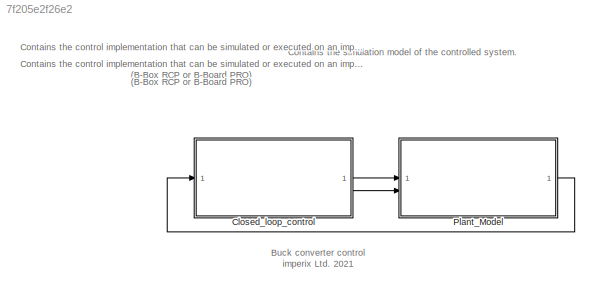
MODEL slx_7f205e2f26e2
KIND model
CONFIG AbsTol = auto
CONFIG EnableMultiTasking = on
CONFIG FixedStep = auto
CONFIG InitFcn = % --- DO NOT REMOVE THIS CODE (SDK2024.2) ---\n    % check SDK version\n    required_lib_version = 3900.3;\n    required_lib_ver_str = '2024.2.2';\n    lib_path = [getenv('IX_SIMULINK_ACG_BB_3') '\simulink\blocks\BoomBox.slx'];\n    if exist(lib_path, 'file')\n        lib_version = str2double(Simulink.MDLInfo(lib_path).ModelVersion); % fullpath to avoid getting shadowing files\n        if lib_version < r...<+1810ch>
CONFIG MaxStep = auto
CONFIG MinStep = auto
CONFIG PostLoadFcn = % --- DO NOT REMOVE THIS CODE (SDK2024.2) ---\n    % change the execution mode of simulink depending on the radio button:\n    if(strcmp('Automated Code Generation',get_param(Find_imperix_blocks(bdroot,'Configuration'),'SLMODE')))\n        assignin('base', 'SIMULINK_MODE', 1);\n    else\n        assignin('base', 'SIMULINK_MODE', 0);\n    end\n\n    Model_PostLoadFcn(bdroot);\n% --- PLACE YOUR CODE BELOW TH...<+15ch>
CONFIG PreLoadFcn = % --- DO NOT REMOVE THIS CODE (SDK2024.2) ---\n    % create Simulink variants\n    if not(exist('variant_simulation', 'var'))\n        variant_simulation = Simulink.Variant('SIMULINK_MODE==0');\n    end\n    if not(exist('variant_generation', 'var'))\n        variant_generation = Simulink.Variant('SIMULINK_MODE==1');\n    end\n\n    % check SDK version\n    required_lib_version = 3900.3;\n    required_lib_ve...<+2550ch>
CONFIG RelTol = 1e-3
CONFIG SampleTimeConstraint = Unconstrained
CONFIG SolverName = VariableStepAuto
CONFIG StartTime = 0.0
CONFIG StopTime = 0.2
WORKSPACE source: mxarray member
WORKSPACE CTRLPERIOD = [5e-05 2.5e-05]
WORKSPACE TSAMPLE = 2e-06
WORKSPACE global_CLK_number = 0
WORKSPACE global_INT_number = 1
WORKSPACE global_SVM_instance_id = 0
WORKSPACE global_can_baud_rate = '1000000'
WORKSPACE global_comp_time = 0.2
WORKSPACE global_cycle_delay = 1e-05
WORKSPACE global_ip_addresses: object (value not decoded)
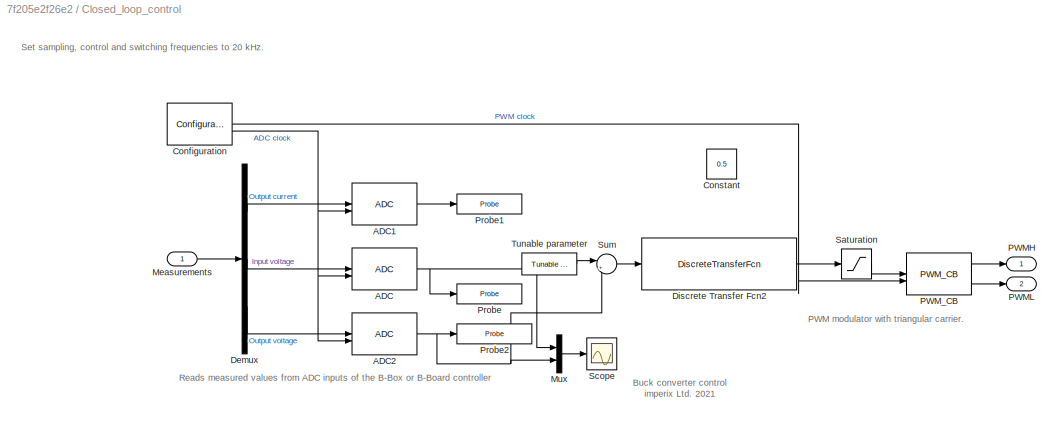
BLOCK [SubSystem] Closed_loop_control
  Priority = -10000
BLOCK [Reference] Closed_loop_control/ADC  REF=BoomBox/ADC
  SourceBlock = BoomBox/ADC
  SourceProductName = Imperix Control
  SourceType = ADC
BLOCK [Reference] Closed_loop_control/ADC1  REF=BoomBox/ADC
  SourceBlock = BoomBox/ADC
  SourceProductName = Imperix Control
  SourceType = ADC
BLOCK [Reference] Closed_loop_control/ADC2  REF=BoomBox/ADC
  SourceBlock = BoomBox/ADC
  SourceProductName = Imperix Control
  SourceType = ADC
BLOCK [Reference] Closed_loop_control/Configuration  REF=BoomBox/Configuration
  Description = Please leave the Priority (below parameter) to maximum negative to ensure that this block is always executed first.
  Priority = -99999
  SourceBlock = BoomBox/Configuration
  SourceProductName = Imperix Control
  SourceType = Configuration
BLOCK [Constant] Closed_loop_control/Constant
  Value = 0.5
BLOCK [Demux] Closed_loop_control/Demux
  Outputs = 3
BLOCK [DiscreteTransferFcn] Closed_loop_control/Discrete Transfer Fcn2
  Denominator = [1 -1.01 0.01044]
  InputPortMap = u0
  Numerator = [6.879 -12.88 6.031]
BLOCK [Inport] Closed_loop_control/Measurements
BLOCK [Mux] Closed_loop_control/Mux
  DisplayOption = bar
  Inputs = 2
BLOCK [Outport] Closed_loop_control/PWMH
  NameLocation = top
BLOCK [Outport] Closed_loop_control/PWML
  Port = 2
BLOCK [Reference] Closed_loop_control/PWM_CB  REF=BoomBox/PWM_CB
  SourceBlock = BoomBox/PWM_CB
  SourceProductName = Imperix Control
  SourceType = Carrier-Based PWM
BLOCK [Reference] Closed_loop_control/Probe  REF=BoomBox/Probe
  SourceBlock = BoomBox/Probe
  SourceProductName = Imperix Control
  SourceType = Probe
BLOCK [Reference] Closed_loop_control/Probe1  REF=BoomBox/Probe
  SourceBlock = BoomBox/Probe
  SourceProductName = Imperix Control
  SourceType = Probe
BLOCK [Reference] Closed_loop_control/Probe2  REF=BoomBox/Probe
  SourceBlock = BoomBox/Probe
  SourceProductName = Imperix Control
  SourceType = Probe
BLOCK [Saturate] Closed_loop_control/Saturation
  LowerLimit = 0.05
  UpperLimit = 0.95
BLOCK [Scope] Closed_loop_control/Scope
  Floating = off
  NumInputPorts = 1
  ScopeSpecificationString = Simulink.scopes.TimeScopeBlockCfg('CurrentConfiguration', extmgr.ConfigurationSet(extmgr.Configuration('Core','General UI',true),extmgr.Configuration('Core','Source UI',true),extmgr.Configuration('Sources','WiredSimulink',true),extmgr.Configuration('Visuals','Time Domain',true,'SerializedDisplays',{struct('MinYLimReal','-16.04411','MaxYLimReal','144.39695','YLabelReal','Voltage [V]','MinYLimMag','...<+1606ch>
BLOCK [Sum] Closed_loop_control/Sum
  Inputs = |+-
BLOCK [Reference] Closed_loop_control/Tunable parameter  REF=BoomBox/Tunable parameter
  SourceBlock = BoomBox/Tunable parameter
  SourceProductName = Imperix Control
  SourceType = Tunable parameter
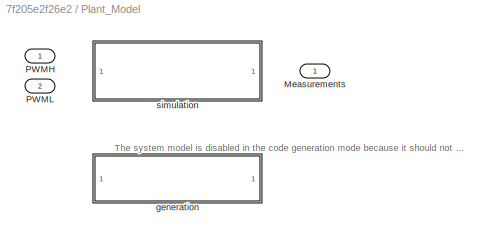
BLOCK [SubSystem] Plant_Model
  Variant = on
BLOCK [Outport] Plant_Model/Measurements
BLOCK [Inport] Plant_Model/PWMH
BLOCK [Inport] Plant_Model/PWML
  Port = 2
BLOCK [SubSystem] Plant_Model/generation
  Permissions = NoReadOrWrite
  TreatAsAtomicUnit = on
  VariantControl = variant_generation
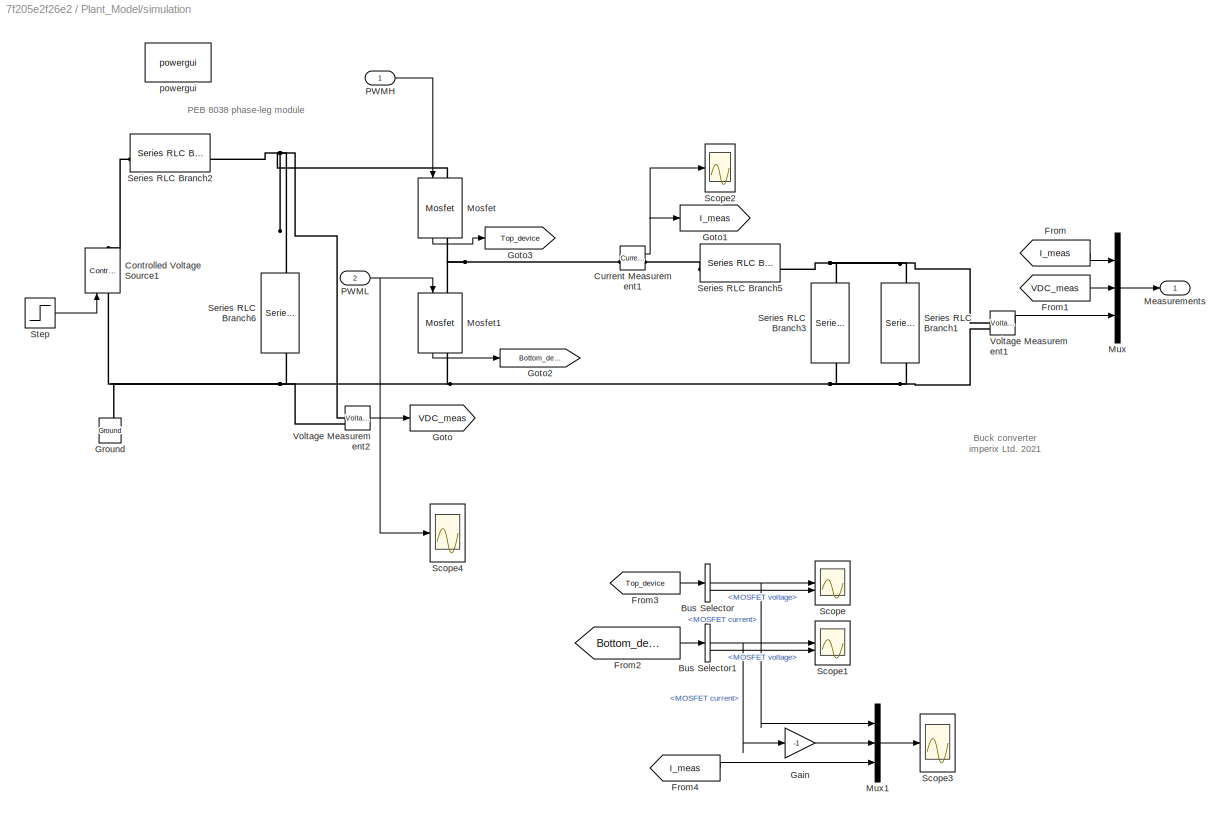
BLOCK [SubSystem] Plant_Model/simulation
  TreatAsAtomicUnit = on
  VariantControl = variant_simulation
BLOCK [BusSelector] Plant_Model/simulation/Bus Selector
  OutputSignals = MOSFET current,MOSFET voltage
BLOCK [BusSelector] Plant_Model/simulation/Bus Selector1
  OutputSignals = MOSFET current,MOSFET voltage
BLOCK [Reference] Plant_Model/simulation/Controlled Voltage Source1  REF=spsControlledVoltageSourceLib/Controlled Voltage Source
  LibrarySourceBlock = sps_lib/Sources/Controlled Voltage Source
  NameLocation = right
  SourceBlock = spsControlledVoltageSourceLib/Controlled Voltage Source
  SourceType = Controlled Voltage Source
BLOCK [Reference] Plant_Model/simulation/Current Measurement1  REF=spsCurrentMeasurementLib/Current Measurement
  LibrarySourceBlock = sps_lib/Sensors and Measurements/Current Measurement
  SourceBlock = spsCurrentMeasurementLib/Current Measurement
  SourceType = Current Measurement
  UserDataPersistent = on
BLOCK [From] Plant_Model/simulation/From
  GotoTag = I_meas
BLOCK [From] Plant_Model/simulation/From1
  GotoTag = VDC_meas
BLOCK [From] Plant_Model/simulation/From2
  GotoTag = Bottom_device
BLOCK [From] Plant_Model/simulation/From3
  GotoTag = Top_device
BLOCK [From] Plant_Model/simulation/From4
  GotoTag = I_meas
BLOCK [Gain] Plant_Model/simulation/Gain
  Gain = -1
BLOCK [Goto] Plant_Model/simulation/Goto
  GotoTag = VDC_meas
BLOCK [Goto] Plant_Model/simulation/Goto1
  GotoTag = I_meas
BLOCK [Goto] Plant_Model/simulation/Goto2
  GotoTag = Bottom_device
BLOCK [Goto] Plant_Model/simulation/Goto3
  GotoTag = Top_device
BLOCK [Reference] Plant_Model/simulation/Ground  REF=spsGroundLib/Ground
  LibrarySourceBlock = sps_lib/Utilities/Ground
  NameLocation = right
  SourceBlock = spsGroundLib/Ground
  SourceType = Ground
BLOCK [Outport] Plant_Model/simulation/Measurements
BLOCK [Reference] Plant_Model/simulation/Mosfet  REF=spsMosfetLib/Mosfet
  LibrarySourceBlock = sps_lib/Power Electronics/Mosfet
  NameLocation = left
  SourceBlock = spsMosfetLib/Mosfet
  SourceType = Mosfet
BLOCK [Reference] Plant_Model/simulation/Mosfet1  REF=spsMosfetLib/Mosfet
  LibrarySourceBlock = sps_lib/Power Electronics/Mosfet
  NameLocation = left
  SourceBlock = spsMosfetLib/Mosfet
  SourceType = Mosfet
BLOCK [Mux] Plant_Model/simulation/Mux
  DisplayOption = bar
  Inputs = 3
BLOCK [Mux] Plant_Model/simulation/Mux1
  DisplayOption = bar
  Inputs = 3
BLOCK [Inport] Plant_Model/simulation/PWMH
BLOCK [Inport] Plant_Model/simulation/PWML
  Port = 2
BLOCK [Scope] Plant_Model/simulation/Scope
  Floating = off
  NumInputPorts = 2
  ScopeSpecificationString = Simulink.scopes.TimeScopeBlockCfg('CurrentConfiguration', extmgr.ConfigurationSet(extmgr.Configuration('Core','General UI',true),extmgr.Configuration('Core','Source UI',true),extmgr.Configuration('Sources','WiredSimulink',true,'DataLoggingVariableName','ScopeData1'),extmgr.Configuration('Visuals','Time Domain',true,'SerializedDisplays',{struct('MinYLimReal','-3.11209','MaxYLimReal','28.00881','YLa...<+2260ch>
BLOCK [Scope] Plant_Model/simulation/Scope1
  Floating = off
  NumInputPorts = 2
  ScopeSpecificationString = Simulink.scopes.TimeScopeBlockCfg('CurrentConfiguration', extmgr.ConfigurationSet(extmgr.Configuration('Core','General UI',true),extmgr.Configuration('Core','Source UI',true),extmgr.Configuration('Sources','WiredSimulink',true,'DataLoggingVariableName','ScopeData2'),extmgr.Configuration('Visuals','Time Domain',true,'SerializedDisplays',{struct('MinYLimReal','-241.49861','MaxYLimReal','124.06938','...<+2266ch>
BLOCK [Scope] Plant_Model/simulation/Scope2
  Floating = off
  NameLocation = right
  NumInputPorts = 1
  ScopeSpecificationString = Simulink.scopes.TimeScopeBlockCfg('CurrentConfiguration', extmgr.ConfigurationSet(extmgr.Configuration('Core','General UI',true),extmgr.Configuration('Core','Source UI',true),extmgr.Configuration('Sources','WiredSimulink',true,'DataLoggingVariableName','ScopeData3'),extmgr.Configuration('Visuals','Time Domain',true,'SerializedDisplays',{struct('MinYLimReal','-3.2011','MaxYLimReal','28.80994','YLab...<+1657ch>
BLOCK [Scope] Plant_Model/simulation/Scope3
  Floating = off
  NumInputPorts = 1
  ScopeSpecificationString = Simulink.scopes.TimeScopeBlockCfg('CurrentConfiguration', extmgr.ConfigurationSet(extmgr.Configuration('Core','General UI',true),extmgr.Configuration('Core','Source UI',true),extmgr.Configuration('Sources','WiredSimulink',true,'DataLoggingVariableName','ScopeData4'),extmgr.Configuration('Visuals','Time Domain',true,'SerializedDisplays',{struct('MinYLimReal','-3.21275','MaxYLimReal','28.91471','YLa...<+1753ch>
BLOCK [Scope] Plant_Model/simulation/Scope4
  Floating = off
  NumInputPorts = 1
  ScopeSpecificationString = Simulink.scopes.TimeScopeBlockCfg('CurrentConfiguration', extmgr.ConfigurationSet(extmgr.Configuration('Core','General UI',true),extmgr.Configuration('Core','Source UI',true),extmgr.Configuration('Sources','WiredSimulink',true),extmgr.Configuration('Visuals','Time Domain',true,'SerializedDisplays',{struct('MinYLimReal','-0.125','MaxYLimReal','1.125','YLabelReal','','MinYLimMag','0.00000','MaxYLimM...<+1656ch>
BLOCK [Reference] Plant_Model/simulation/Series RLC Branch1  REF=spsSeriesRLCBranchLib/Series RLC Branch
  LibrarySourceBlock = sps_lib/Passives/Series RLC Branch
  NameLocation = left
  SourceBlock = spsSeriesRLCBranchLib/Series RLC Branch
  SourceType = Series RLC Branch
BLOCK [Reference] Plant_Model/simulation/Series RLC Branch2  REF=spsSeriesRLCBranchLib/Series RLC Branch
  LibrarySourceBlock = sps_lib/Passives/Series RLC Branch
  SourceBlock = spsSeriesRLCBranchLib/Series RLC Branch
  SourceType = Series RLC Branch
BLOCK [Reference] Plant_Model/simulation/Series RLC Branch3  REF=spsSeriesRLCBranchLib/Series RLC Branch
  LibrarySourceBlock = sps_lib/Passives/Series RLC Branch
  NameLocation = left
  SourceBlock = spsSeriesRLCBranchLib/Series RLC Branch
  SourceType = Series RLC Branch
BLOCK [Reference] Plant_Model/simulation/Series RLC Branch5  REF=spsSeriesRLCBranchLib/Series RLC Branch
  LibrarySourceBlock = sps_lib/Passives/Series RLC Branch
  SourceBlock = spsSeriesRLCBranchLib/Series RLC Branch
  SourceType = Series RLC Branch
BLOCK [Reference] Plant_Model/simulation/Series RLC Branch6  REF=spsSeriesRLCBranchLib/Series RLC Branch
  LibrarySourceBlock = sps_lib/Passives/Series RLC Branch
  NameLocation = left
  SourceBlock = spsSeriesRLCBranchLib/Series RLC Branch
  SourceType = Series RLC Branch
BLOCK [Step] Plant_Model/simulation/Step
  After = 130
  Before = 100
  SampleTime = 0
  Time = 0.1
BLOCK [Reference] Plant_Model/simulation/Voltage Measurement1  REF=spsVoltageMeasurementLib/Voltage Measurement
  LibrarySourceBlock = sps_lib/Sensors and Measurements/Voltage Measurement
  SourceBlock = spsVoltageMeasurementLib/Voltage Measurement
  SourceType = Voltage Measurement
  UserDataPersistent = on
BLOCK [Reference] Plant_Model/simulation/Voltage Measurement2  REF=spsVoltageMeasurementLib/Voltage Measurement
  LibrarySourceBlock = sps_lib/Sensors and Measurements/Voltage Measurement
  SourceBlock = spsVoltageMeasurementLib/Voltage Measurement
  SourceType = Voltage Measurement
  UserDataPersistent = on
BLOCK [Reference] Plant_Model/simulation/powergui  REF=sps_lib/powergui
  LibrarySourceBlock = sps_lib/powergui
  Priority = 1
  SourceBlock = sps_lib/powergui
  SourceType = PSB option menu block
ANNOTATION (root): Buck converter control imperix Ltd. 2021
ANNOTATION (root): Contains the control implementation that can be simulated or executed on an imperix target (B-Box RCP or B-Board PRO)
ANNOTATION (root): Contains the simulation model of the controlled system.
ANNOTATION Closed_loop_control: Set sampling, control and switching frequencies to 20 kHz.
ANNOTATION Closed_loop_control: Buck converter control imperix Ltd. 2021
ANNOTATION Closed_loop_control: Reads measured values from ADC inputs of the B-Box or B-Board controller
ANNOTATION Closed_loop_control: PWM modulator with triangular carrier.
ANNOTATION Plant_Model: The system model is disabled in the code generation mode because it should not generate any code to be downloaded in the B-Box.
ANNOTATION Plant_Model/simulation: Buck converter imperix Ltd. 2021
ANNOTATION Plant_Model/simulation: PEB 8038 phase-leg module
LINE Closed_loop_control/ADC1:1 -> Closed_loop_control/Probe1:1
NET Closed_loop_control/ADC2:1 -> Closed_loop_control/Mux:2, Closed_loop_control/Probe2:1, Closed_loop_control/Sum:2
NET Closed_loop_control/ADC:1 -> Closed_loop_control/Mux:1, Closed_loop_control/Probe:1
LINE Closed_loop_control/Configuration:1 -> Closed_loop_control/PWM_CB:2
NET Closed_loop_control/Configuration:2 -> Closed_loop_control/ADC1:2, Closed_loop_control/ADC2:2, Closed_loop_control/ADC:2
LINE Closed_loop_control/Demux:1 -> Closed_loop_control/ADC1:1
LINE Closed_loop_control/Demux:2 -> Closed_loop_control/ADC:1
LINE Closed_loop_control/Demux:3 -> Closed_loop_control/ADC2:1
LINE Closed_loop_control/Discrete Transfer Fcn2:1 -> Closed_loop_control/Saturation:1
LINE Closed_loop_control/Measurements:1 -> Closed_loop_control/Demux:1
LINE Closed_loop_control/Mux:1 -> Closed_loop_control/Scope:1
LINE Closed_loop_control/PWM_CB:1 -> Closed_loop_control/PWMH:1
LINE Closed_loop_control/PWM_CB:2 -> Closed_loop_control/PWML:1
LINE Closed_loop_control/Saturation:1 -> Closed_loop_control/PWM_CB:1
LINE Closed_loop_control/Sum:1 -> Closed_loop_control/Discrete Transfer Fcn2:1
LINE Closed_loop_control/Tunable parameter:1 -> Closed_loop_control/Sum:1
LINE Closed_loop_control:1 -> Plant_Model:1
LINE Closed_loop_control:2 -> Plant_Model:2
NET Plant_Model/simulation/Bus Selector1:1 -> Plant_Model/simulation/Gain:1, Plant_Model/simulation/Scope1:1
LINE Plant_Model/simulation/Bus Selector1:2 -> Plant_Model/simulation/Scope1:2
NET Plant_Model/simulation/Bus Selector:1 -> Plant_Model/simulation/Mux1:1, Plant_Model/simulation/Scope:1
LINE Plant_Model/simulation/Bus Selector:2 -> Plant_Model/simulation/Scope:2
NET Plant_Model/simulation/Current Measurement1:1 -> Plant_Model/simulation/Goto1:1, Plant_Model/simulation/Scope2:1
LINE Plant_Model/simulation/From1:1 -> Plant_Model/simulation/Mux:2
LINE Plant_Model/simulation/From2:1 -> Plant_Model/simulation/Bus Selector1:1
LINE Plant_Model/simulation/From3:1 -> Plant_Model/simulation/Bus Selector:1
LINE Plant_Model/simulation/From4:1 -> Plant_Model/simulation/Mux1:3
LINE Plant_Model/simulation/From:1 -> Plant_Model/simulation/Mux:1
LINE Plant_Model/simulation/Gain:1 -> Plant_Model/simulation/Mux1:2
LINE Plant_Model/simulation/Mosfet1:1 -> Plant_Model/simulation/Goto2:1
LINE Plant_Model/simulation/Mosfet:1 -> Plant_Model/simulation/Goto3:1
LINE Plant_Model/simulation/Mux1:1 -> Plant_Model/simulation/Scope3:1
LINE Plant_Model/simulation/Mux:1 -> Plant_Model/simulation/Measurements:1
LINE Plant_Model/simulation/PWMH:1 -> Plant_Model/simulation/Mosfet:1
NET Plant_Model/simulation/PWML:1 -> Plant_Model/simulation/Mosfet1:1, Plant_Model/simulation/Scope4:1
LINE Plant_Model/simulation/Step:1 -> Plant_Model/simulation/Controlled Voltage Source1:1
LINE Plant_Model/simulation/Voltage Measurement1:1 -> Plant_Model/simulation/Mux:3
LINE Plant_Model/simulation/Voltage Measurement2:1 -> Plant_Model/simulation/Goto:1
LINE Plant_Model:1 -> Closed_loop_control:1
PNET net1: Plant_Model/simulation/Controlled Voltage Source1:LConn1 -- Plant_Model/simulation/Ground:LConn1 -- Plant_Model/simulation/Mosfet1:RConn1 -- Plant_Model/simulation/Series RLC Branch1:RConn1 -- Plant_Model/simulation/Series RLC Branch3:RConn1 -- Plant_Model/simulation/Series RLC Branch6:RConn1 -- Plant_Model/simulation/Voltage Measurement1:LConn2 -- Plant_Model/simulation/Voltage Measurement2:LConn2
PLINE Plant_Model/simulation/Controlled Voltage Source1:RConn1 -- Plant_Model/simulation/Series RLC Branch2:LConn1
PNET net2: Plant_Model/simulation/Current Measurement1:LConn1 -- Plant_Model/simulation/Mosfet1:LConn1 -- Plant_Model/simulation/Mosfet:RConn1
PLINE Plant_Model/simulation/Current Measurement1:RConn1 -- Plant_Model/simulation/Series RLC Branch5:LConn1
PNET net3: Plant_Model/simulation/Mosfet:LConn1 -- Plant_Model/simulation/Series RLC Branch2:RConn1 -- Plant_Model/simulation/Series RLC Branch6:LConn1 -- Plant_Model/simulation/Voltage Measurement2:LConn1
PNET net4: Plant_Model/simulation/Series RLC Branch1:LConn1 -- Plant_Model/simulation/Series RLC Branch3:LConn1 -- Plant_Model/simulation/Series RLC Branch5:RConn1 -- Plant_Model/simulation/Voltage Measurement1:LConn1
note: NET lines group one-source signal fan-out (src -> all destinations, sorted); 1:1 wires keep LINE; PNET lines group multi-terminal physical nets as a canonical sorted terminal list (undirected conserving connections); 2-terminal nets keep the pairwise PLINE form
